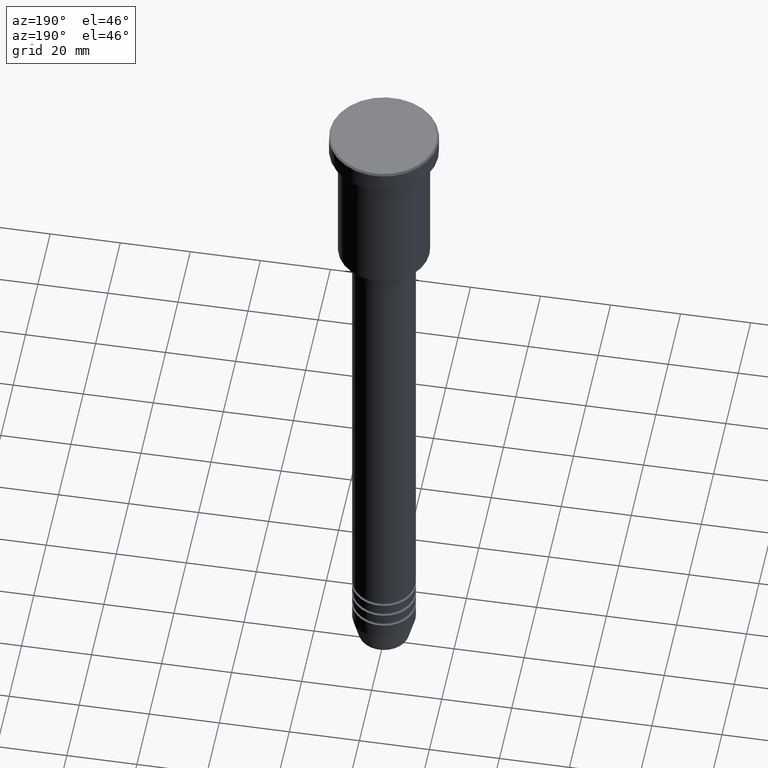
[diagram: clean part render]
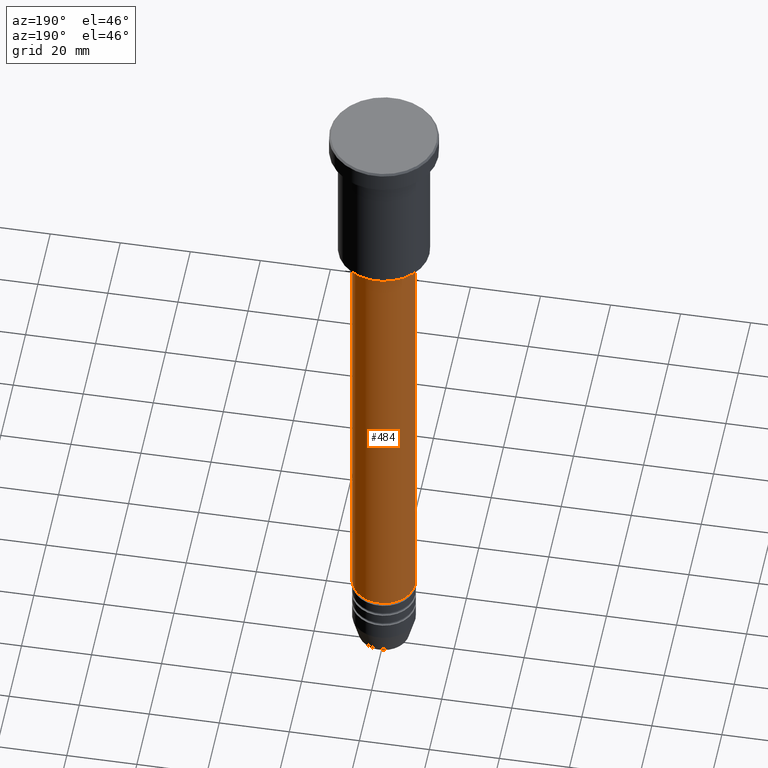
[diagram: same view with one face highlighted and labeled with its STEP entity id]
A machine part, auxiliary view. The second image highlights one B-rep face of the part: STEP entity #484.
In plain terms, the highlighted cylindrical surface (edge-blend (fillet) strip) has radius 9 mm, axis along (-0, -0, 1).
Its self-contained STEP definition (entity closure, byte-faithful):
#26 = VERTEX_POINT ( 'NONE', #576 ) ;
#117 = DIRECTION ( 'NONE',  ( -0.000000000000000000, -0.000000000000000000, 1.000000000000000000 ) ) ;
#137 = AXIS2_PLACEMENT_3D ( 'NONE', #491, #117, #391 ) ;
#169 = VERTEX_POINT ( 'NONE', #970 ) ;
#204 = CYLINDRICAL_SURFACE ( 'NONE', #417, 9.000000000000000000 ) ;
#217 = EDGE_CURVE ( 'NONE', #169, #847, #415, .T. ) ;
#218 = CIRCLE ( 'NONE', #312, 8.999999999999998224 ) ;
#223 = DIRECTION ( 'NONE',  ( -0.000000000000000000, -0.000000000000000000, 1.000000000000000000 ) ) ;
#241 = CARTESIAN_POINT ( 'NONE',  ( 9.000000000000000000, 0.000000000000000000, 0.000000000000000000 ) ) ;
#251 = CARTESIAN_POINT ( 'NONE',  ( 0.000000000000000000, 0.000000000000000000, -47.00000000000003553 ) ) ;
#260 = DIRECTION ( 'NONE',  ( -0.000000000000000000, -0.000000000000000000, 1.000000000000000000 ) ) ;
#283 = CARTESIAN_POINT ( 'NONE',  ( -9.000000000000000000, 1.102182119232617714E-15, 0.000000000000000000 ) ) ;
#312 = AXIS2_PLACEMENT_3D ( 'NONE', #251, #906, #612 ) ;
#389 = EDGE_CURVE ( 'NONE', #26, #738, #1086, .T. ) ;
#391 = DIRECTION ( 'NONE',  ( 1.000000000000000000, 0.000000000000000000, 0.000000000000000000 ) ) ;
#415 = LINE ( 'NONE', #241, #843 ) ;
#417 = AXIS2_PLACEMENT_3D ( 'NONE', #1024, #223, #1029 ) ;
#444 = EDGE_CURVE ( 'NONE', #169, #26, #510, .T. ) ;
#454 = ORIENTED_EDGE ( 'NONE', *, *, #389, .T. ) ;
#484 = ADVANCED_FACE ( 'NONE', ( #846 ), #204, .T. ) ;
#491 = CARTESIAN_POINT ( 'NONE',  ( 0.000000000000000000, 0.000000000000000000, -179.9999999999999147 ) ) ;
#510 = CIRCLE ( 'NONE', #137, 9.000000000000001776 ) ;
#532 = ORIENTED_EDGE ( 'NONE', *, *, #444, .T. ) ;
#576 = CARTESIAN_POINT ( 'NONE',  ( -9.000000000000001776, 1.102182119232617911E-15, -179.9999999999999147 ) ) ;
#612 = DIRECTION ( 'NONE',  ( 1.000000000000000000, 0.000000000000000000, 0.000000000000000000 ) ) ;
#639 = CARTESIAN_POINT ( 'NONE',  ( 8.999999999999998224, 0.000000000000000000, -47.00000000000003553 ) ) ;
#693 = EDGE_CURVE ( 'NONE', #847, #738, #218, .T. ) ;
#723 = VECTOR ( 'NONE', #260, 1000.000000000000000 ) ;
#738 = VERTEX_POINT ( 'NONE', #1099 ) ;
#751 = ORIENTED_EDGE ( 'NONE', *, *, #693, .F. ) ;
#788 = DIRECTION ( 'NONE',  ( -0.000000000000000000, -0.000000000000000000, 1.000000000000000000 ) ) ;
#843 = VECTOR ( 'NONE', #788, 1000.000000000000000 ) ;
#846 = FACE_OUTER_BOUND ( 'NONE', #944, .T. ) ;
#847 = VERTEX_POINT ( 'NONE', #639 ) ;
#906 = DIRECTION ( 'NONE',  ( -0.000000000000000000, -0.000000000000000000, 1.000000000000000000 ) ) ;
#944 = EDGE_LOOP ( 'NONE', ( #532, #454, #751, #1097 ) ) ;
#970 = CARTESIAN_POINT ( 'NONE',  ( 9.000000000000001776, 0.000000000000000000, -179.9999999999999147 ) ) ;
#1024 = CARTESIAN_POINT ( 'NONE',  ( 0.000000000000000000, 0.000000000000000000, 0.000000000000000000 ) ) ;
#1029 = DIRECTION ( 'NONE',  ( 1.000000000000000000, 0.000000000000000000, 0.000000000000000000 ) ) ;
#1086 = LINE ( 'NONE', #283, #723 ) ;
#1097 = ORIENTED_EDGE ( 'NONE', *, *, #217, .F. ) ;
#1099 = CARTESIAN_POINT ( 'NONE',  ( -8.999999999999998224, 1.102182119232617714E-15, -47.00000000000003553 ) ) ;